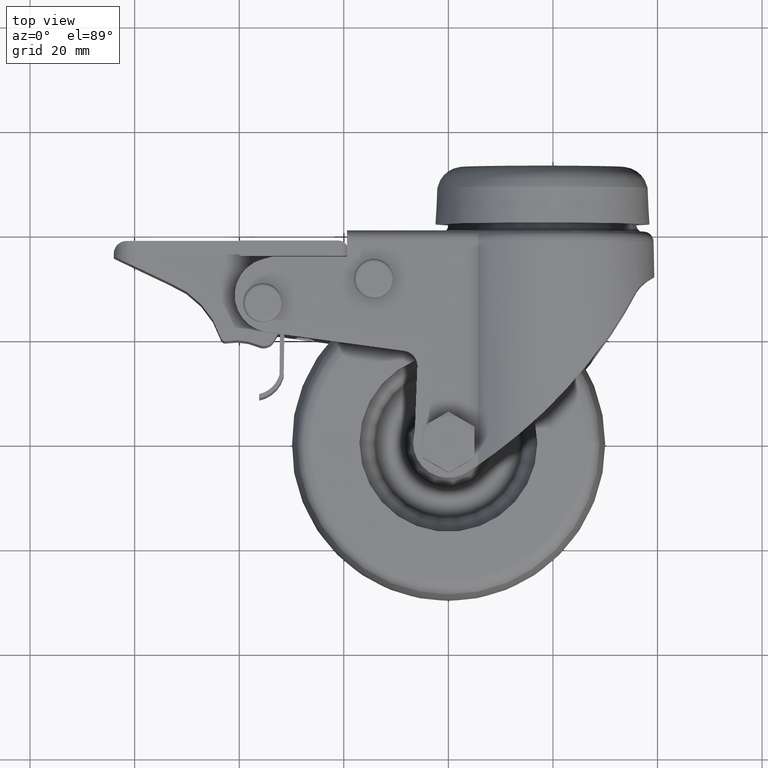
[diagram: clean part render]
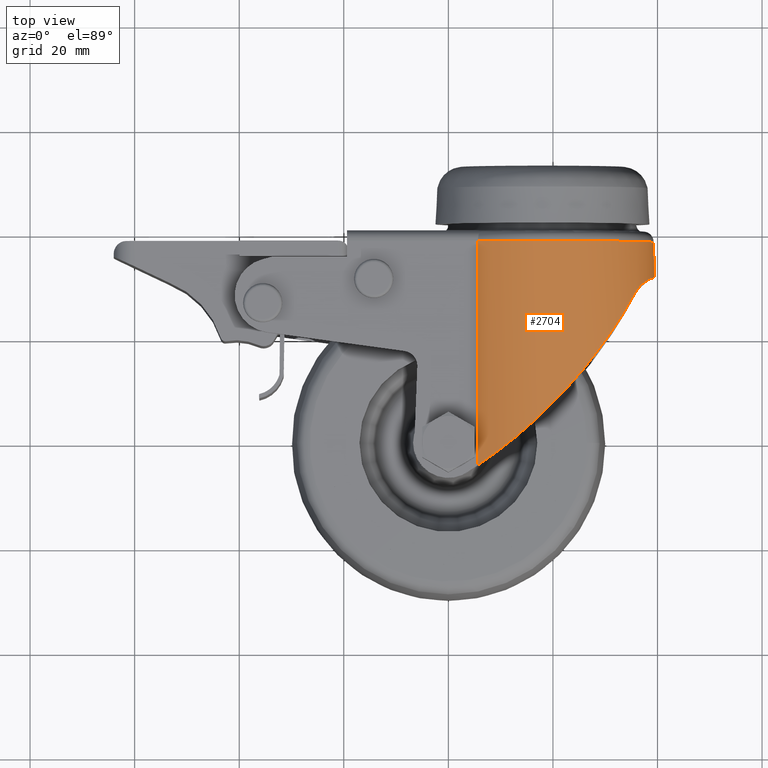
[diagram: same view with one face highlighted and labeled with its STEP entity id]
A machine part, top view. The second image highlights one B-rep face of the part: STEP entity #2704.
In plain terms, the highlighted cylindrical surface (partial cylindrical patch) has radius 21.4 mm, axis along (0, 1, 0).
Its self-contained STEP definition (entity closure, byte-faithful):
#57=LINE('',#4410,#192);
#58=LINE('',#4413,#193);
#192=VECTOR('',#3401,42.8714300874409);
#193=VECTOR('',#3404,42.8714300874409);
#322=B_SPLINE_CURVE_WITH_KNOTS('',3,(#4388,#4389,#4390,#4391,#4392,#4393,
#4394,#4395,#4396,#4397,#4398,#4399,#4400,#4401,#4402,#4403,#4404,#4405),
 .UNSPECIFIED.,.F.,.F.,(4,2,2,2,2,2,2,2,4),(9.59201204738129,9.92952063781603,
11.2801243625009,11.9554262248433,12.6307280871857,13.1452837251989,13.6598393632121,
14.1743950012252,14.2002211597098),.UNSPECIFIED.);
#323=B_SPLINE_CURVE_WITH_KNOTS('',3,(#4415,#4416,#4417,#4418,#4419,#4420,
#4421,#4422,#4423,#4424,#4425,#4426,#4427,#4428,#4429,#4430,#4431,#4432,
#4433,#4434,#4435,#4436),.UNSPECIFIED.,.F.,.F.,(4,2,2,2,2,2,2,2,2,2,4),
(-6.18516237845775,-6.10055593338571,-5.93163933542839,-5.76272273747107,
-5.36855090657403,-4.97437907567698,-4.58020724477993,-4.18603541388289,
-4.01711881592557,-3.84820221796825,-3.76359577289621),.UNSPECIFIED.);
#324=B_SPLINE_CURVE_WITH_KNOTS('',3,(#4437,#4438,#4439,#4440,#4441,#4442,
#4443,#4444,#4445,#4446,#4447,#4448,#4449,#4450,#4451,#4452,#4453,#4454),
 .UNSPECIFIED.,.F.,.F.,(4,2,2,2,2,2,2,2,4),(-14.2002211597098,-14.1743950012252,
-13.6598393632121,-13.1452837251989,-12.6307280871857,-11.9554262248433,
-11.2801243625009,-9.92952063781604,-9.59201204738129),.UNSPECIFIED.);
#465=CYLINDRICAL_SURFACE('',#2941,21.4000000000002);
#632=FACE_OUTER_BOUND('',#850,.T.);
#850=EDGE_LOOP('',(#1937,#1938,#1939,#1940,#1941,#1942));
#1092=CIRCLE('',#2942,21.4000000000002);
#1266=VERTEX_POINT('',#4385);
#1267=VERTEX_POINT('',#4387);
#1268=VERTEX_POINT('',#4408);
#1269=VERTEX_POINT('',#4409);
#1270=VERTEX_POINT('',#4411);
#1271=VERTEX_POINT('',#4414);
#1531=EDGE_CURVE('',#1266,#1267,#322,.T.);
#1533=EDGE_CURVE('',#1268,#1269,#57,.T.);
#1534=EDGE_CURVE('',#1268,#1270,#1092,.T.);
#1535=EDGE_CURVE('',#1267,#1270,#58,.F.);
#1536=EDGE_CURVE('',#1266,#1271,#323,.T.);
#1537=EDGE_CURVE('',#1269,#1271,#324,.T.);
#1937=ORIENTED_EDGE('',*,*,#1533,.F.);
#1938=ORIENTED_EDGE('',*,*,#1534,.T.);
#1939=ORIENTED_EDGE('',*,*,#1535,.F.);
#1940=ORIENTED_EDGE('',*,*,#1531,.F.);
#1941=ORIENTED_EDGE('',*,*,#1536,.T.);
#1942=ORIENTED_EDGE('',*,*,#1537,.F.);
#2704=ADVANCED_FACE('',(#632),#465,.T.);
#2941=AXIS2_PLACEMENT_3D('',#4407,#3399,#3400);
#2942=AXIS2_PLACEMENT_3D('',#4412,#3402,#3403);
#3399=DIRECTION('center_axis',(0.,1.,0.));
#3400=DIRECTION('ref_axis',(0.,0.,-1.));
#3401=DIRECTION('',(0.,-1.,0.));
#3402=DIRECTION('center_axis',(0.,-1.,0.));
#3403=DIRECTION('ref_axis',(0.,0.,-1.));
#3404=DIRECTION('',(0.,-1.,0.));
#4385=CARTESIAN_POINT('',(35.981003115093,29.1394638249089,11.6035997421067));
#4387=CARTESIAN_POINT('',(5.68293866216404,-4.33343008744093,17.5));
#4388=CARTESIAN_POINT('Ctrl Pts',(35.981003115093,29.1394638249089,11.6035997421067));
#4389=CARTESIAN_POINT('Ctrl Pts',(35.5353228750099,28.3056530364137,12.2942283369719));
#4390=CARTESIAN_POINT('Ctrl Pts',(35.065112867623,27.4572344147373,12.9350349046588));
#4391=CARTESIAN_POINT('Ctrl Pts',(32.6723815823177,23.295048644893,15.8701051928288));
#4392=CARTESIAN_POINT('Ctrl Pts',(30.2138957144662,19.5337696229598,17.8558368377076));
#4393=CARTESIAN_POINT('Ctrl Pts',(25.9379417746554,14.0351009463145,19.9364380650245));
#4394=CARTESIAN_POINT('Ctrl Pts',(24.4167991016963,12.2229037651267,20.4793598904582));
#4395=CARTESIAN_POINT('Ctrl Pts',(21.2637145767665,8.74505475894562,21.2114982791828));
#4396=CARTESIAN_POINT('Ctrl Pts',(19.6316800098172,7.0793365439363,21.4000000000002));
#4397=CARTESIAN_POINT('Ctrl Pts',(16.7567187426779,4.34707117274939,21.4000000000002));
#4398=CARTESIAN_POINT('Ctrl Pts',(15.4272601155522,3.15072854796786,21.290215887467));
#4399=CARTESIAN_POINT('Ctrl Pts',(12.6946310649434,0.83444895550837,20.7784827069522));
#4400=CARTESIAN_POINT('Ctrl Pts',(11.2915324338016,-0.285486572331255,20.3761438310857));
#4401=CARTESIAN_POINT('Ctrl Pts',(8.52610449209693,-2.37053676520958,19.2467173141959));
#4402=CARTESIAN_POINT('Ctrl Pts',(7.16195136982795,-3.33736659130243,18.5184268122058));
#4403=CARTESIAN_POINT('Ctrl Pts',(5.81143352604494,-4.24721292130146,17.5899113853595));
#4404=CARTESIAN_POINT('Ctrl Pts',(5.74708468385259,-4.2904472457101,17.5451480276409));
#4405=CARTESIAN_POINT('Ctrl Pts',(5.68293866216405,-4.33343008744094,17.5));
#4407=CARTESIAN_POINT('Origin',(17.9999999999998,46.4655,0.));
#4408=CARTESIAN_POINT('',(5.68293866216405,38.538,-17.5));
#4409=CARTESIAN_POINT('',(5.68293866216404,-4.33343008744093,-17.5));
#4410=CARTESIAN_POINT('',(5.68293866216404,46.4655,-17.5));
#4411=CARTESIAN_POINT('',(5.68293866216404,38.538,17.5));
#4412=CARTESIAN_POINT('Origin',(17.9999999999998,38.538,0.));
#4413=CARTESIAN_POINT('',(5.68293866216404,46.4655,17.5));
#4414=CARTESIAN_POINT('',(35.981003115093,29.1394638249089,-11.6035997421067));
#4415=CARTESIAN_POINT('Ctrl Pts',(35.981003115093,29.1394638249089,11.6035997421067));
#4416=CARTESIAN_POINT('Ctrl Pts',(36.1035289230108,29.3240355628986,11.4137330642813));
#4417=CARTESIAN_POINT('Ctrl Pts',(36.2279497332794,29.4927491161844,11.2141898754425));
#4418=CARTESIAN_POINT('Ctrl Pts',(36.5934726423543,29.9504397931072,10.605037134199));
#4419=CARTESIAN_POINT('Ctrl Pts',(36.8613266706171,30.231339711954,10.1259184142631));
#4420=CARTESIAN_POINT('Ctrl Pts',(37.3728492782776,30.6977830759917,9.10914824818896));
#4421=CARTESIAN_POINT('Ctrl Pts',(37.6157945796291,30.8849156665541,8.57186273415432));
#4422=CARTESIAN_POINT('Ctrl Pts',(38.2997944183926,31.3657254408791,6.89140137209618));
#4423=CARTESIAN_POINT('Ctrl Pts',(38.7202333911945,31.5742808587151,5.53643668846712));
#4424=CARTESIAN_POINT('Ctrl Pts',(39.2704355342302,31.8218734083948,2.7475070097614));
#4425=CARTESIAN_POINT('Ctrl Pts',(39.4,31.8654324428255,1.31390610299015));
#4426=CARTESIAN_POINT('Ctrl Pts',(39.4,31.8654324428255,-1.31390610299015));
#4427=CARTESIAN_POINT('Ctrl Pts',(39.2704355342302,31.8218734083948,-2.74750700976139));
#4428=CARTESIAN_POINT('Ctrl Pts',(38.7202333911945,31.5742808587151,-5.53643668846711));
#4429=CARTESIAN_POINT('Ctrl Pts',(38.2997944183926,31.3657254408791,-6.89140137209618));
#4430=CARTESIAN_POINT('Ctrl Pts',(37.6157945796291,30.8849156665541,-8.57186273415432));
#4431=CARTESIAN_POINT('Ctrl Pts',(37.3728492782777,30.6977830759917,-9.10914824818896));
#4432=CARTESIAN_POINT('Ctrl Pts',(36.8613266706171,30.231339711954,-10.1259184142631));
#4433=CARTESIAN_POINT('Ctrl Pts',(36.5934726423543,29.9504397931072,-10.605037134199));
#4434=CARTESIAN_POINT('Ctrl Pts',(36.2279497332794,29.4927491161844,-11.2141898754425));
#4435=CARTESIAN_POINT('Ctrl Pts',(36.1035289230108,29.3240355628986,-11.4137330642813));
#4436=CARTESIAN_POINT('Ctrl Pts',(35.981003115093,29.1394638249089,-11.6035997421067));
#4437=CARTESIAN_POINT('Ctrl Pts',(5.68293866216404,-4.33343008744094,-17.5));
#4438=CARTESIAN_POINT('Ctrl Pts',(5.74708468385259,-4.2904472457101,-17.5451480276409));
#4439=CARTESIAN_POINT('Ctrl Pts',(5.81143352604493,-4.24721292130146,-17.5899113853595));
#4440=CARTESIAN_POINT('Ctrl Pts',(7.16195136982795,-3.33736659130243,-18.5184268122058));
#4441=CARTESIAN_POINT('Ctrl Pts',(8.52610449209693,-2.37053676520958,-19.2467173141959));
#4442=CARTESIAN_POINT('Ctrl Pts',(11.2915324338016,-0.285486572331253,-20.3761438310857));
#4443=CARTESIAN_POINT('Ctrl Pts',(12.6946310649434,0.83444895550837,-20.7784827069522));
#4444=CARTESIAN_POINT('Ctrl Pts',(15.4272601155522,3.15072854796786,-21.290215887467));
#4445=CARTESIAN_POINT('Ctrl Pts',(16.7567187426779,4.34707117274939,-21.4000000000002));
#4446=CARTESIAN_POINT('Ctrl Pts',(19.6316800098172,7.0793365439363,-21.4000000000002));
#4447=CARTESIAN_POINT('Ctrl Pts',(21.2637145767665,8.74505475894562,-21.2114982791828));
#4448=CARTESIAN_POINT('Ctrl Pts',(24.4167991016963,12.2229037651267,-20.4793598904582));
#4449=CARTESIAN_POINT('Ctrl Pts',(25.9379417746554,14.0351009463145,-19.9364380650245));
#4450=CARTESIAN_POINT('Ctrl Pts',(30.2138957144662,19.5337696229598,-17.8558368377076));
#4451=CARTESIAN_POINT('Ctrl Pts',(32.6723815823177,23.295048644893,-15.8701051928288));
#4452=CARTESIAN_POINT('Ctrl Pts',(35.065112867623,27.4572344147373,-12.9350349046588));
#4453=CARTESIAN_POINT('Ctrl Pts',(35.5353228750099,28.3056530364137,-12.2942283369719));
#4454=CARTESIAN_POINT('Ctrl Pts',(35.981003115093,29.1394638249089,-11.6035997421067));